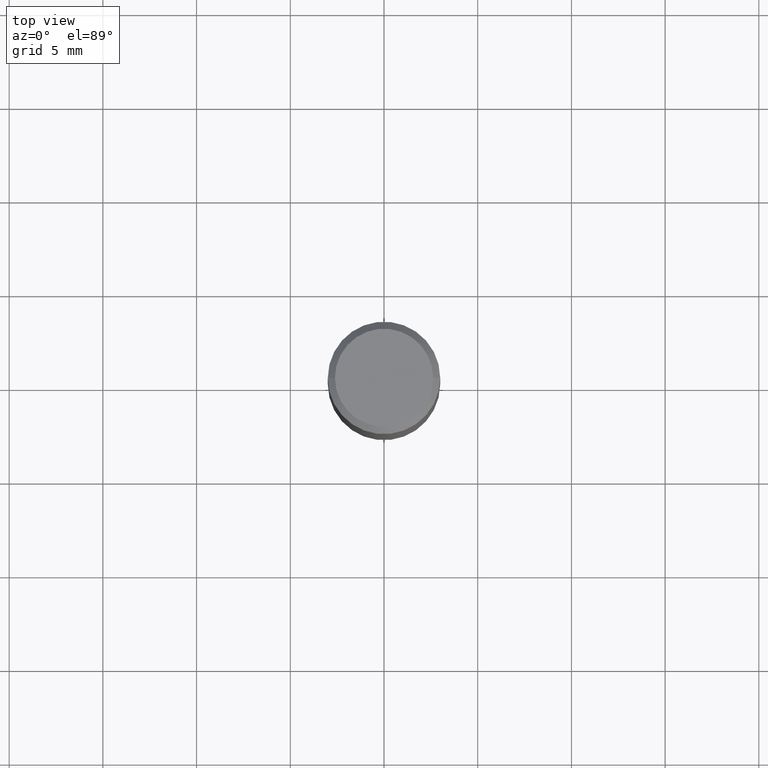
[diagram: clean part render]
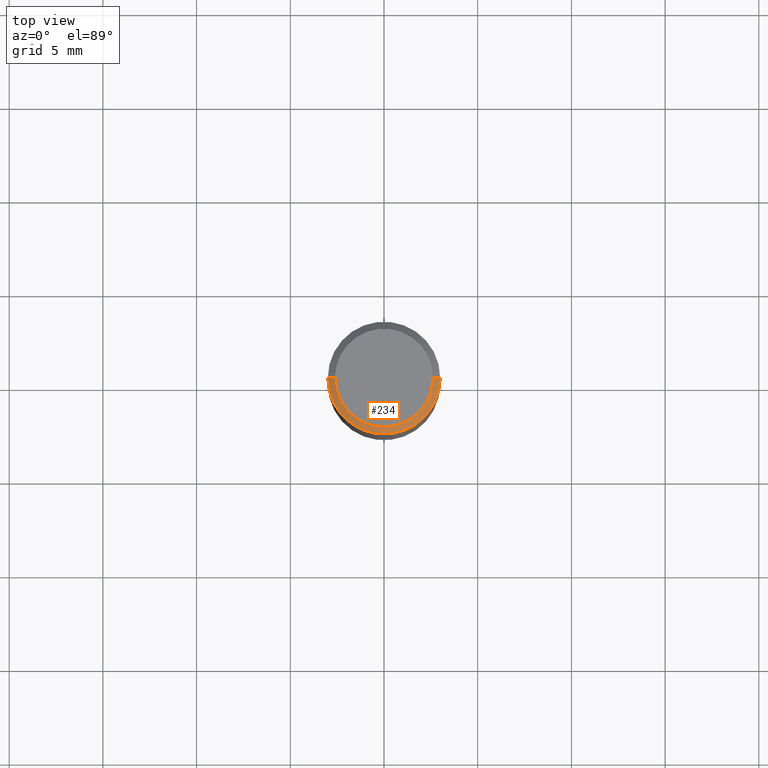
[diagram: same view with one face highlighted and labeled with its STEP entity id]
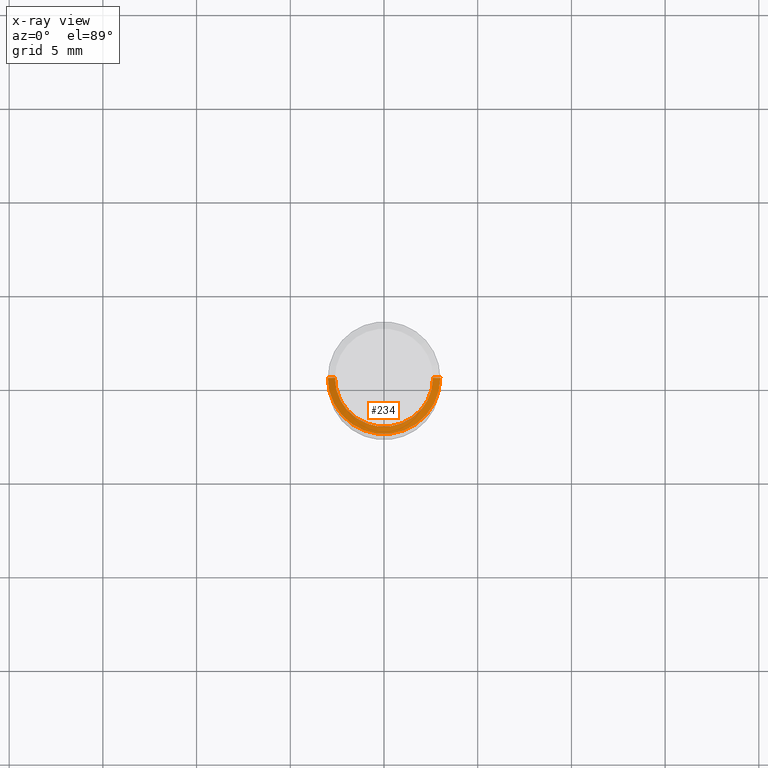
[diagram: x-ray of the same camera — body ghosted, the highlighted face saturated]
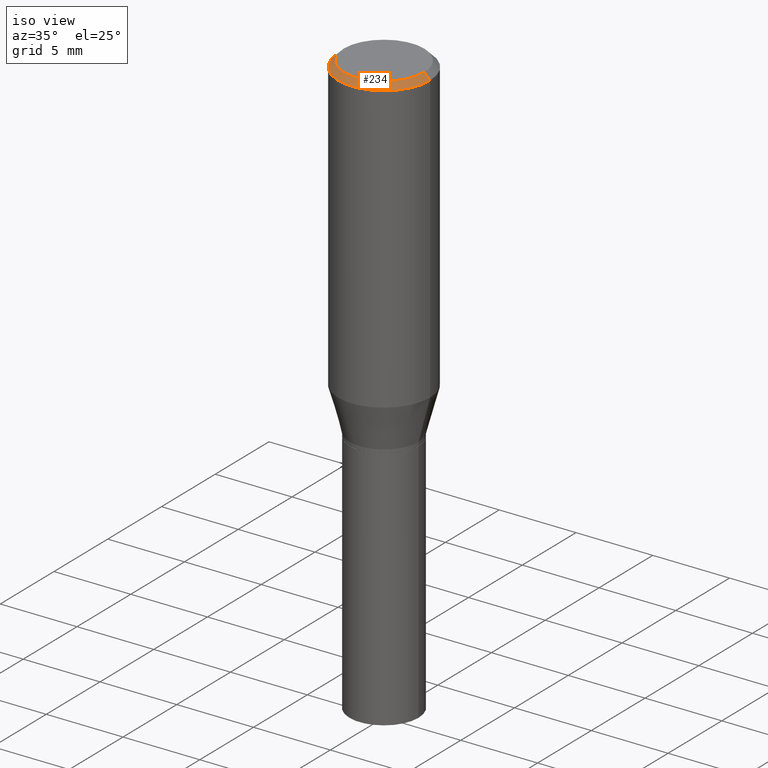
[diagram: same view with one face highlighted and labeled with its STEP entity id]
A machine part, top view. The second image highlights one B-rep face of the part: STEP entity #234.
The next image is the same camera in x-ray: the body ghosted, the highlighted face saturated — about 0% of this face is hidden behind the body in this view.
A second angle (iso view) of the same face is appended — the face is thin or edge-on in the first view.
In plain terms, the highlighted conical surface has half-angle 45 deg.
Its self-contained STEP definition (entity closure, byte-faithful):
#7 = CARTESIAN_POINT ( 'NONE',  ( 0.1180999999999999966, -8.625970336194650129E-16, -0.01499999999999999944 ) ) ;
#32 = AXIS2_PLACEMENT_3D ( 'NONE', #301, #188, #266 ) ;
#39 = VERTEX_POINT ( 'NONE', #236 ) ;
#71 = AXIS2_PLACEMENT_3D ( 'NONE', #77, #437, #304 ) ;
#76 = EDGE_CURVE ( 'NONE', #466, #365, #441, .T. ) ;
#77 = CARTESIAN_POINT ( 'NONE',  ( 4.647400995173613138E-45, -6.635256932220833331E-31, -1.900413116462290932E-16 ) ) ;
#80 = DIRECTION ( 'NONE',  ( -0.7071067811865516806, 2.468850131082300842E-15, -0.7071067811865431318 ) ) ;
#82 = VECTOR ( 'NONE', #80, 39.37007874015748854 ) ;
#89 = CIRCLE ( 'NONE', #71, 0.1031000000000000111 ) ;
#98 = CARTESIAN_POINT ( 'NONE',  ( -0.1180999999999999966, -4.963484990620824888E-16, -0.01499999999999999944 ) ) ;
#102 = ORIENTED_EDGE ( 'NONE', *, *, #326, .F. ) ;
#140 = DIRECTION ( 'NONE',  ( 1.000000000000000000, -6.982962677686266711E-15, 0.000000000000000000 ) ) ;
#148 = FACE_OUTER_BOUND ( 'NONE', #367, .T. ) ;
#149 = VECTOR ( 'NONE', #380, 39.37007874015748854 ) ;
#152 = LINE ( 'NONE', #415, #82 ) ;
#154 = CARTESIAN_POINT ( 'NONE',  ( 0.1031000000000000111, -7.849571885948552706E-16, -1.900413116462238423E-16 ) ) ;
#164 = AXIS2_PLACEMENT_3D ( 'NONE', #400, #324, #140 ) ;
#188 = DIRECTION ( 'NONE',  ( 2.445468806185136597E-29, -3.491481338843145583E-15, -1.000000000000000000 ) ) ;
#197 = CARTESIAN_POINT ( 'NONE',  ( 0.1180999999999999966, -8.770601123173952432E-16, -0.01499999999999999944 ) ) ;
#234 = ADVANCED_FACE ( 'NONE', ( #148 ), #434, .T. ) ;
#236 = CARTESIAN_POINT ( 'NONE',  ( -0.1031000000000000111, 7.461295621107772493E-16, -1.900413116462341961E-16 ) ) ;
#239 = EDGE_CURVE ( 'NONE', #39, #466, #152, .T. ) ;
#264 = ORIENTED_EDGE ( 'NONE', *, *, #314, .F. ) ;
#266 = DIRECTION ( 'NONE',  ( -1.000000000000000000, 6.982962677686266711E-15, 0.000000000000000000 ) ) ;
#273 = ORIENTED_EDGE ( 'NONE', *, *, #239, .T. ) ;
#286 = VERTEX_POINT ( 'NONE', #154 ) ;
#301 = CARTESIAN_POINT ( 'NONE',  ( 3.668203209277705088E-31, -5.237222008264718399E-17, -0.01499999999999999944 ) ) ;
#304 = DIRECTION ( 'NONE',  ( 1.000000000000000000, -6.982962677686265922E-15, 4.883331232093008327E-29 ) ) ;
#311 = ORIENTED_EDGE ( 'NONE', *, *, #76, .T. ) ;
#314 = EDGE_CURVE ( 'NONE', #286, #365, #404, .T. ) ;
#324 = DIRECTION ( 'NONE',  ( -2.445468806185136597E-29, 3.491481338843145583E-15, 1.000000000000000000 ) ) ;
#326 = EDGE_CURVE ( 'NONE', #39, #286, #89, .T. ) ;
#365 = VERTEX_POINT ( 'NONE', #197 ) ;
#367 = EDGE_LOOP ( 'NONE', ( #264, #102, #273, #311 ) ) ;
#380 = DIRECTION ( 'NONE',  ( 0.7071067811865516806, -7.319954787623268667E-15, -0.7071067811865431318 ) ) ;
#400 = CARTESIAN_POINT ( 'NONE',  ( 3.668203209277705088E-31, -5.237222008264718399E-17, -0.01499999999999999944 ) ) ;
#404 = LINE ( 'NONE', #7, #149 ) ;
#415 = CARTESIAN_POINT ( 'NONE',  ( -0.1180999999999999966, 7.723156721521009862E-16, -0.01499999999999999944 ) ) ;
#434 = CONICAL_SURFACE ( 'NONE', #32, 0.1180999999999999966, 0.7853981633974543852 ) ;
#437 = DIRECTION ( 'NONE',  ( -2.445468806185136597E-29, 3.491481338843145583E-15, 1.000000000000000000 ) ) ;
#441 = CIRCLE ( 'NONE', #164, 0.1180999999999999966 ) ;
#466 = VERTEX_POINT ( 'NONE', #98 ) ;